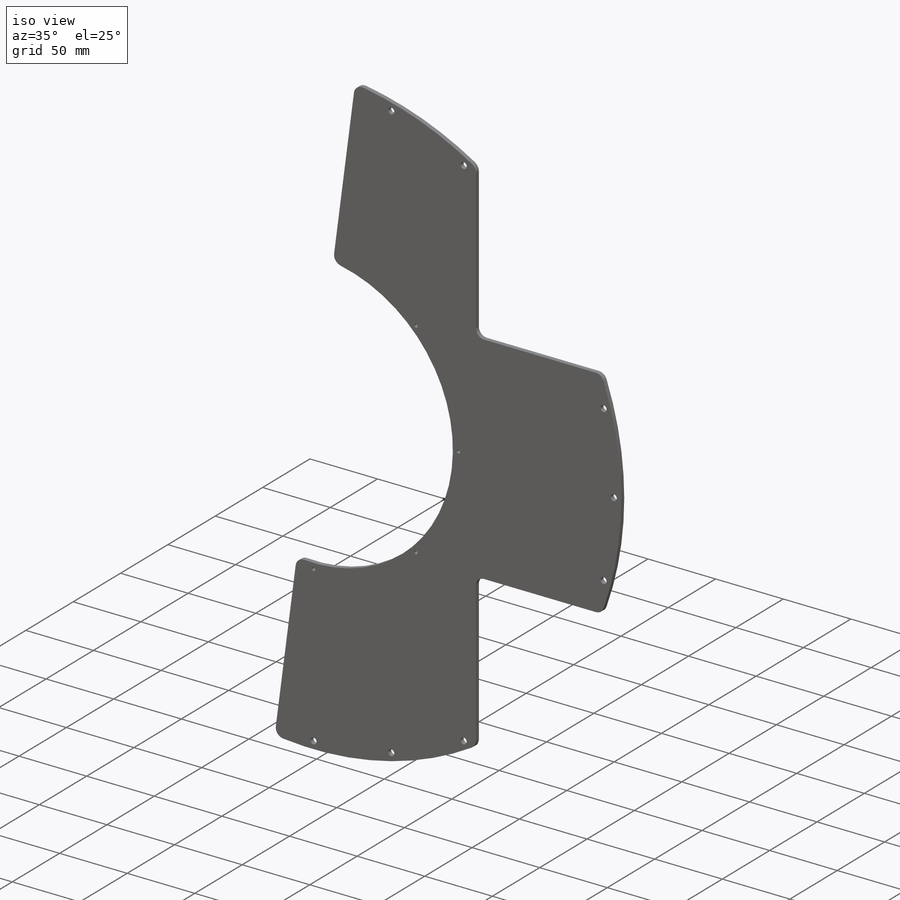
[diagram: iso view]
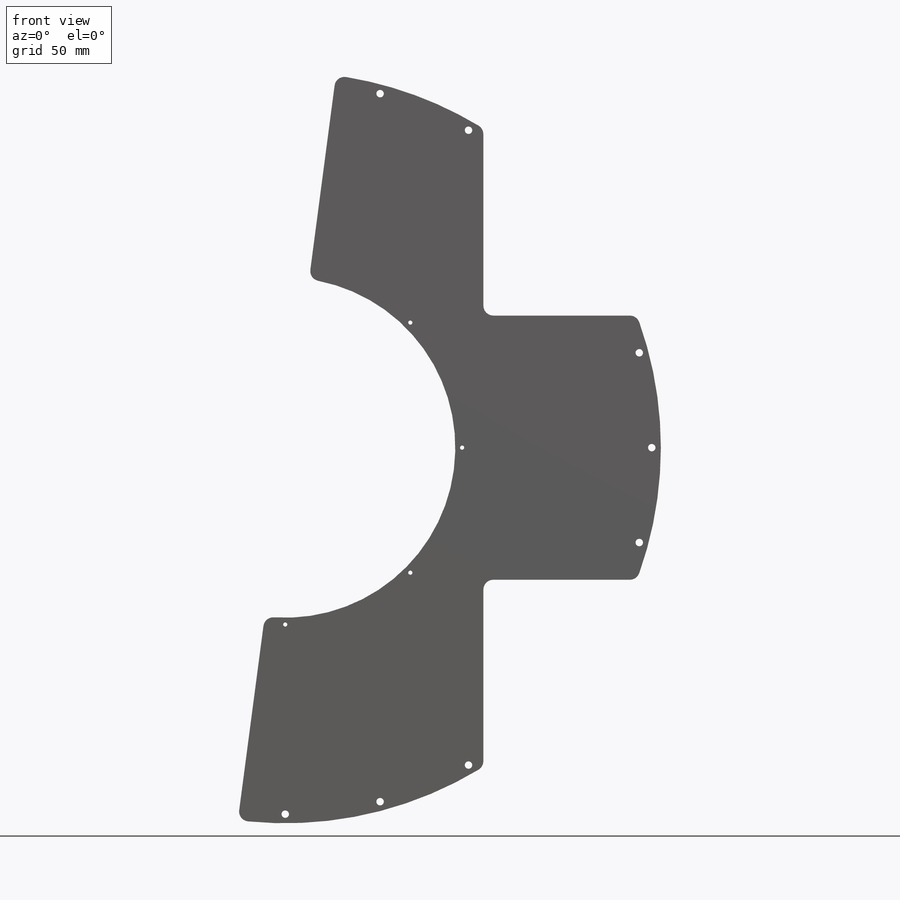
[diagram: front view]
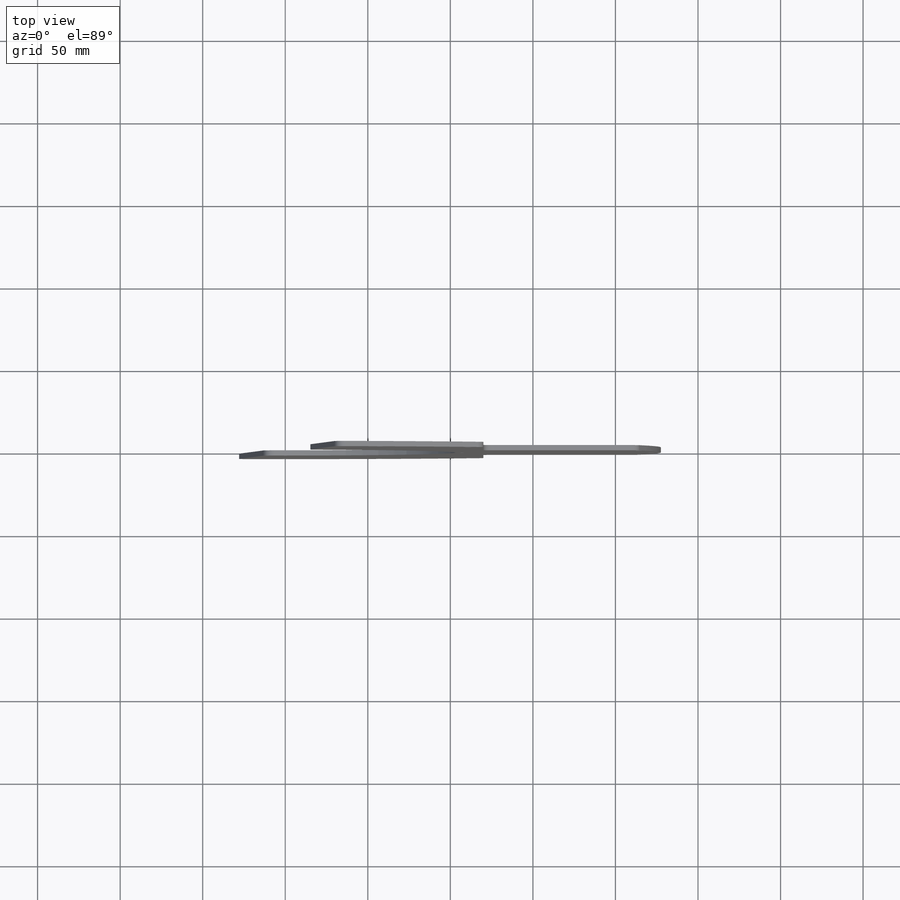
[diagram: top view]
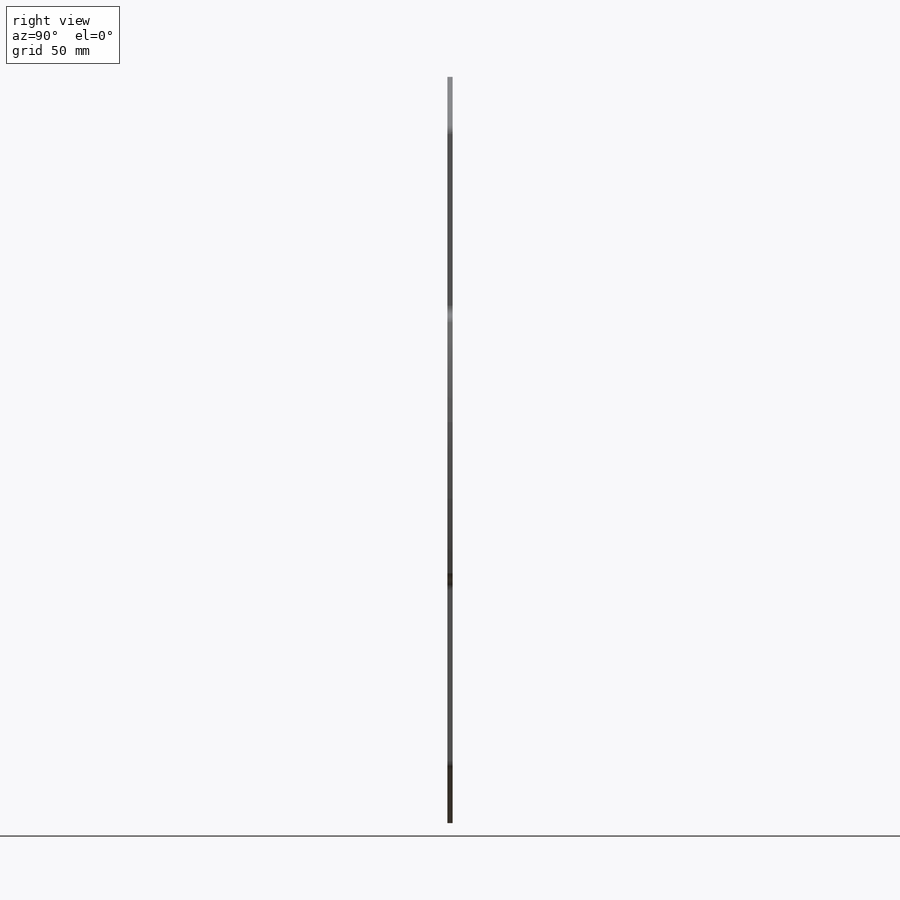
[diagram: right view]
SOLIDWORKS PART (.sldprt)
format: sldprt  version: not decoded by parser v0  size: 338,944 bytes
history: native  units: mm
features: sketch x7, hole x2, pattern_circular x2, cut_extrude x2, fillet x2, mirror x2, material x1, extrude x1, thread x1 (+11 scaffold rows collapsed)
feature tree (31):
  scaffold x11  (default folders/planes/origin — collapsed)
  material  "6061-T6 (SS)"
  sketch  "Sketch1"  dims[D1=455.0mm D2=206.0mm]
  extrude  "Boss-Extrude1"  Depth=3.175mm
  hole  "M3x0.5 Tapped Hole2"  Diameter=2.5mm Depth=3.175mm
  sketch  "Sketch3"  dims[D1=107.125mm]
  sketch  "Sketch4"  dims[hole-wizard template sketch: 61 standard entries collapsed; hole parameters above]
  thread  "Hole Thread2"  Diameter=3mm  [1 undecoded]
  pattern_circular  "CirPattern1"  Count=8 Angle=360deg
  hole  "M4 Clearance Hole1"  Diameter=4.5mm Depth=3.175mm
  sketch  "Sketch6"  dims[D1=222.0mm]
  sketch  "Sketch7"  dims[hole-wizard template sketch: 60 standard entries collapsed; hole parameters kept: c18.Thru Hole Depth=3.175mm]
  pattern_circular  "CirPattern2"  Count=24 Angle=360deg
  sketch  "Sketch8"  dims[D1=80.0mm D2=120.0mm]
  cut_extrude  "Cut-Extrude1"  [1 undecoded]
  fillet  "Fillet1"  Radius=6mm
  mirror  "Mirror1"
  mirror  "Mirror2"
  sketch  "Sketch9"  dims[c1.D1=~451.107412mm c2.D1=~0.318191deg c3.D1=1.0mm c3.D2=500.0mm c3.D3=300.0mm]
  cut_extrude  "Cut-Extrude2"  [1 undecoded]
  fillet  "Fillet2"  Radius=6mm
decode coverage: 15 of 19 modeling features carry decoded parameters
note: ~ marks probable driven/reference dimensions
note: 3 parameter values undecoded
note: suppression state not decoded; provenance and decode notes live in map.json
